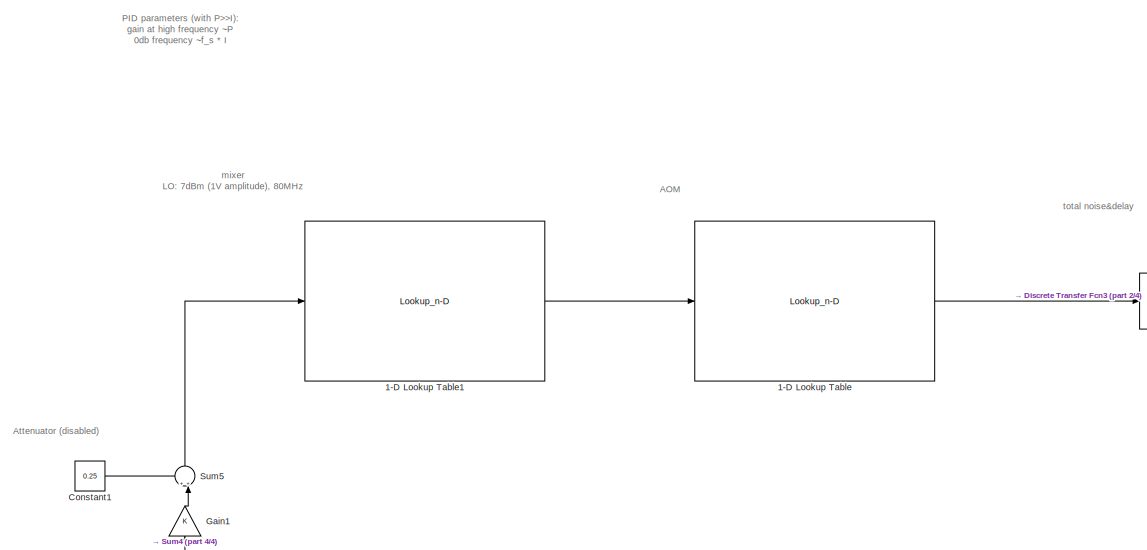
[diagram: root canvas - part 1/4, top left region]
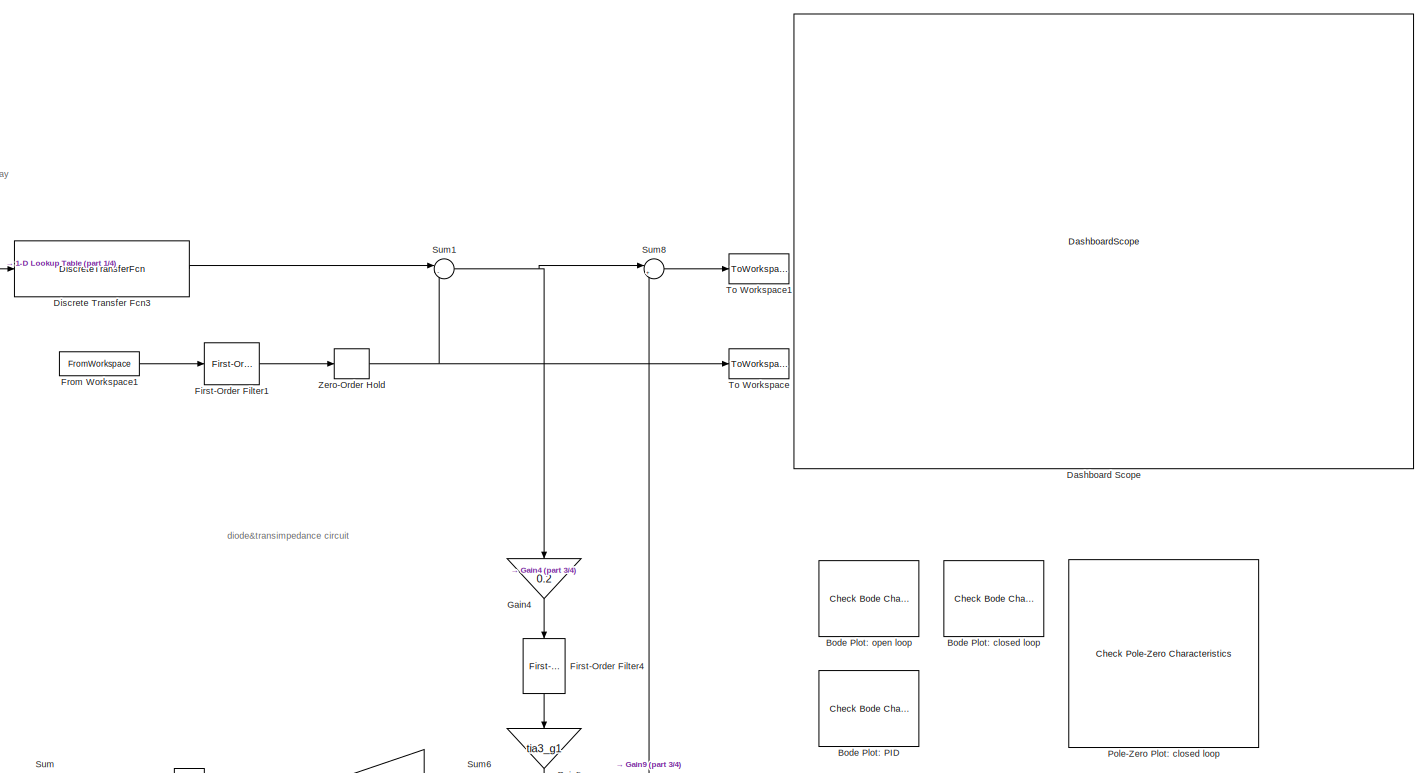
[diagram: root canvas - part 2/4, middle right region]
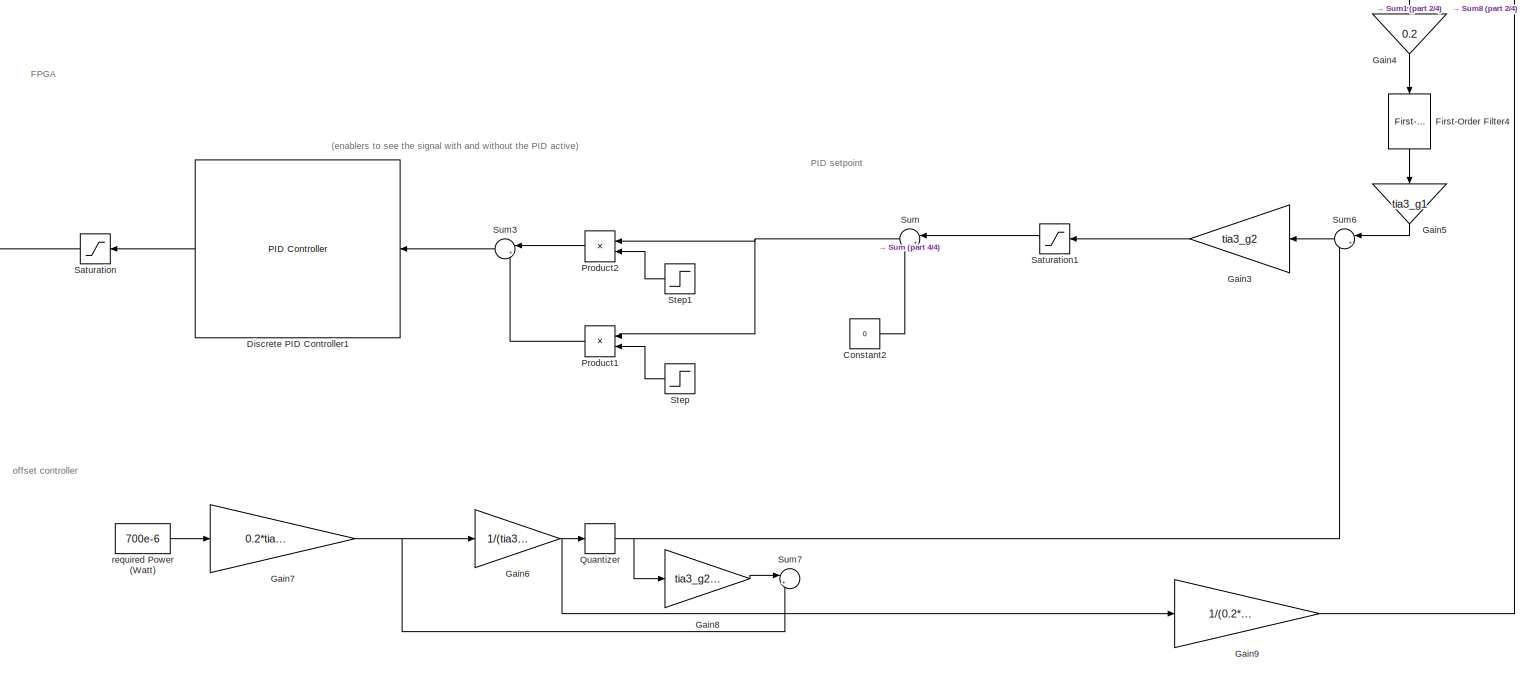
[diagram: root canvas - part 3/4, bottom center region]
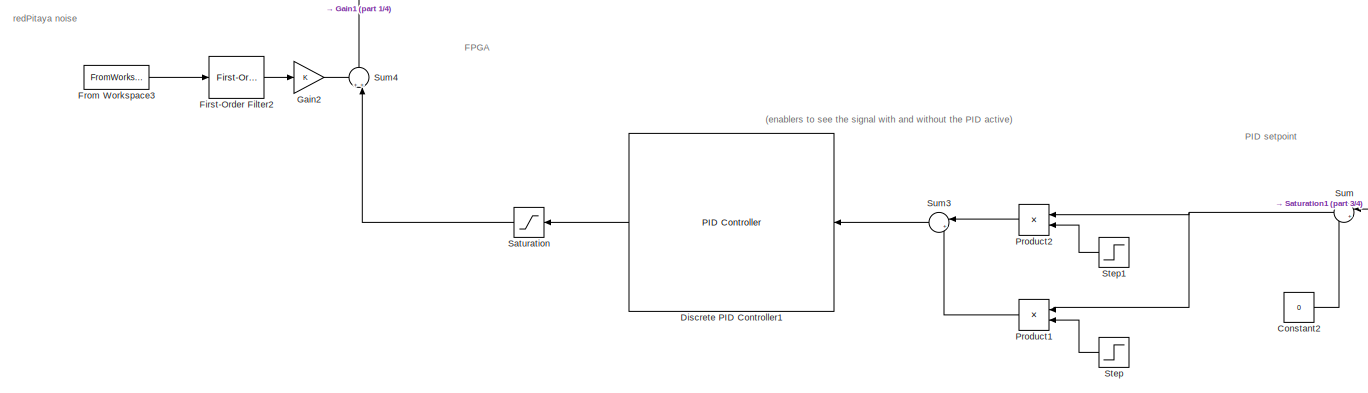
[diagram: root canvas - part 4/4, middle left region]
MODEL slx_bb8d70a57ca4
KIND model
CONFIG AbsTol = auto
CONFIG EnableMultiTasking = off
CONFIG FixedStep = auto
CONFIG MaxStep = auto
CONFIG MinStep = auto
CONFIG RelTol = 1e-3
CONFIG SampleTimeConstraint = Unconstrained
CONFIG SolverName = VariableStepAuto
CONFIG StartTime = 0
CONFIG StopTime = 20e-3
BLOCK [Lookup_n-D] 1-D Lookup Table
  BreakpointsForDimension1 = linspace(0, 1.58e-4, 250)
  InputPortMap = u0
  InternalRulePriority = Speed
  NumberOfTableDimensions = 1
  RndMeth = Simplest
  Table = 0.7/0.0165796/(5600*0.2)*[0.00094876, 0.00102912, 0.00104173, 0.00106448, 0.00103857, 0.00100141, 0.00101933, 0.00100616, 0.00097746, 0.00121732, 0.00134761, 0.00150802, 0.00188835, 0.0021115 , 0.00246877, 0.00279502, 0.00315454, 0.0035255 , 0.00394097, 0.00436382, 0.00480437, 0.00527323, 0.00575644, 0.00627402, 0.00681823, 0.00736118, 0.00793556, 0.00852683, 0.00913098, 0.00972158, 0.01035586, 0....<+2625ch>
BLOCK [Lookup_n-D] 1-D Lookup Table1
  BreakpointsForDimension1 = linspace(-.8,.8,21)
  InputPortMap = u0
  InternalRulePriority = Speed
  NumberOfTableDimensions = 1
  RndMeth = Simplest
  Table = 2.51e-5/.132*[0.15277694, 0.15133159, 0.14388574, 0.13145916, 0.11693308, 0.10007559, 0.08228435, 0.06224287, 0.04267323, 0.02078463, 0.00518469, 0.01619251, 0.03847123, 0.05810312, 0.07840341, 0.09661693, 0.1137483 , 0.12865011, 0.14147862, 0.15027863, 0.1525739]
BLOCK [Reference] Bode Plot: PID  REF=slctrl_linear/Check Bode 
Characteristics
  InstantiateOnLoad = on
  LibrarySourceBlock = slctrlblks/Linear Analysis Plots/Bode Plot
  SourceBlock = slctrl_linear/Check Bode \nCharacteristics
  SourceType = Checks_Bode
BLOCK [Reference] Bode Plot: closed loop  REF=slctrl_linear/Check Bode 
Characteristics
  InstantiateOnLoad = on
  LibrarySourceBlock = slctrlblks/Linear Analysis Plots/Bode Plot
  SourceBlock = slctrl_linear/Check Bode \nCharacteristics
  SourceType = Checks_Bode
BLOCK [Reference] Bode Plot: open loop  REF=slctrl_linear/Check Bode 
Characteristics
  InstantiateOnLoad = on
  LibrarySourceBlock = slctrlblks/Linear Analysis Plots/Bode Plot
  SourceBlock = slctrl_linear/Check Bode \nCharacteristics
  SourceType = Checks_Bode
BLOCK [Constant] Constant1
  Value = 0.25
BLOCK [Constant] Constant2
  Value = 0
BLOCK [DashboardScope] Dashboard Scope
BLOCK [Reference] Discrete PID Controller1  REF=slpidlib/PID Controller
  LibrarySourceBlock = simulink/Discrete/Discrete PID Controller
  SourceBlock = slpidlib/PID Controller
  SourceType = PID 1dof
BLOCK [DiscreteTransferFcn] Discrete Transfer Fcn3
  Denominator = [1, zeros(1,nDelay)]
  InputPortMap = u0
  a0EqualsOne = on
BLOCK [Reference] First-Order Filter1  REF=spsFirstOrderFilterLib/First-Order
Filter
  LibrarySourceBlock = sps_lib/Control/Filters/First-Order\nFilter
  SourceBlock = spsFirstOrderFilterLib/First-Order\nFilter
  SourceType = First-Order Filter
BLOCK [Reference] First-Order Filter2  REF=spsFirstOrderFilterLib/First-Order
Filter
  Commented = on
  LibrarySourceBlock = sps_lib/Control/Filters/First-Order\nFilter
  SourceBlock = spsFirstOrderFilterLib/First-Order\nFilter
  SourceType = First-Order Filter
BLOCK [Reference] First-Order Filter4  REF=spsFirstOrderFilterLib/First-Order
Filter
  LibrarySourceBlock = sps_lib/Control/Filters/First-Order\nFilter
  NameLocation = left
  SourceBlock = spsFirstOrderFilterLib/First-Order\nFilter
  SourceType = First-Order Filter
BLOCK [FromWorkspace] From Workspace1
  OutputAfterFinalValue = Setting to zero
  SampleTime = 1/fNoiseSampling
  VariableName = actualLaserNoise
BLOCK [FromWorkspace] From Workspace3
  Commented = on
  OutputAfterFinalValue = Setting to zero
  SampleTime = 1/fNoiseSampling
  VariableName = rpFloor
BLOCK [Gain] Gain1
  NameLocation = right
BLOCK [Gain] Gain2
  Commented = on
BLOCK [Gain] Gain3
  Gain = tia3_g2
  NameLocation = top
BLOCK [Gain] Gain4
  Gain = 0.2
  NameLocation = left
BLOCK [Gain] Gain5
  Gain = tia3_g1
  NameLocation = left
BLOCK [Gain] Gain6
  Gain = 1/(tia3_g2+1)
  NameLocation = top
BLOCK [Gain] Gain7
  Gain = 0.2*tia3_g1*tia3_g2
  NameLocation = top
BLOCK [Gain] Gain8
  Gain = tia3_g2+1
  NameLocation = top
BLOCK [Gain] Gain9
  Gain = 1/(0.2*tia3_g1)
  NameLocation = top
BLOCK [Reference] Pole-Zero Plot: closed loop  REF=slctrl_linear/Check Pole-Zero
Characteristics
  InstantiateOnLoad = on
  LibrarySourceBlock = slctrlblks/Linear Analysis Plots/Pole-Zero Plot
  SourceBlock = slctrl_linear/Check Pole-Zero\nCharacteristics
  SourceType = Checks_PZMap
BLOCK [Product] Product1
  NameLocation = top
BLOCK [Product] Product2
  NameLocation = top
BLOCK [Quantizer] Quantizer
  QuantizationInterval = .25
BLOCK [Saturate] Saturation
  LowerLimit = -1
  UpperLimit = 1
BLOCK [Saturate] Saturation1
  LowerLimit = -1
  UpperLimit = 1
BLOCK [Step] Step
  NameLocation = top
  SampleTime = 0
  Time = initialWaitTime
BLOCK [Step] Step1
  After = 0
  Before = 1
  NameLocation = top
  SampleTime = 0
  Time = 1/fsampling
BLOCK [Sum] Sum
  Inputs = |+-
  NameLocation = top
BLOCK [Sum] Sum1
  Inputs = |-+
BLOCK [Sum] Sum3
  Inputs = |++
BLOCK [Sum] Sum4
  Inputs = ++|
  NameLocation = left
BLOCK [Sum] Sum5
  Inputs = ++|
  NameLocation = left
BLOCK [Sum] Sum6
  Inputs = |++
  NameLocation = top
BLOCK [Sum] Sum7
  Inputs = |+-
BLOCK [Sum] Sum8
  Inputs = |++
BLOCK [ToWorkspace] To Workspace
  MaxDataPoints = inf
  SampleTime = -1
  SaveFormat = Structure With Time
  VariableName = inputNoise
BLOCK [ToWorkspace] To Workspace1
  MaxDataPoints = inf
  SampleTime = -1
  SaveFormat = Timeseries
  VariableName = laserNoise
BLOCK [ZeroOrderHold] Zero-Order Hold
  SampleTime = 1/fsampling
BLOCK [Constant] required Power (Watt)
  Value = 700e-6
ANNOTATION (root): (enablers to see the signal with and without the PID active)
ANNOTATION (root): AOM
ANNOTATION (root): Attenuator (disabled)
ANNOTATION (root): FPGA
ANNOTATION (root): PID parameters (with P>>I): gain at high frequency ~P 0db frequency ~f_s * I
ANNOTATION (root): PID setpoint
ANNOTATION (root): diode&transimpedance circuit
ANNOTATION (root): mixer LO: 7dBm (1V amplitude), 80MHz
ANNOTATION (root): offset controller
ANNOTATION (root): redPitaya noise
ANNOTATION (root): total noise&delay
LINE 1-D Lookup Table1:1 -> 1-D Lookup Table:1
LINE 1-D Lookup Table:1 -> Discrete Transfer Fcn3:1
LINE Constant1:1 -> Sum5:1
LINE Constant2:1 -> Sum:2
LINE Discrete PID Controller1:1 -> Saturation:1
LINE Discrete Transfer Fcn3:1 -> Sum1:1
LINE First-Order Filter1:1 -> Zero-Order Hold:1
LINE First-Order Filter2:1 -> Gain2:1
LINE First-Order Filter4:1 -> Gain5:1
LINE From Workspace1:1 -> First-Order Filter1:1
LINE From Workspace3:1 -> First-Order Filter2:1
LINE Gain1:1 -> Sum5:2
LINE Gain2:1 -> Sum4:1
LINE Gain3:1 -> Saturation1:1
LINE Gain4:1 -> First-Order Filter4:1
LINE Gain5:1 -> Sum6:1
NET Gain6:1 -> Gain9:1, Quantizer:1
NET Gain7:1 -> Gain6:1, Sum7:2
LINE Gain8:1 -> Sum7:1
LINE Gain9:1 -> Sum8:2
LINE Product1:1 -> Sum3:2
LINE Product2:1 -> Sum3:1
NET Quantizer:1 -> Gain8:1, Sum6:2
LINE Saturation1:1 -> Sum:1
LINE Saturation:1 -> Sum4:2
LINE Step1:1 -> Product2:2
LINE Step:1 -> Product1:2
NET Sum1:1 -> Gain4:1, Sum8:1
LINE Sum3:1 -> Discrete PID Controller1:1
LINE Sum4:1 -> Gain1:1
LINE Sum5:1 -> 1-D Lookup Table1:1
LINE Sum6:1 -> Gain3:1
LINE Sum8:1 -> To Workspace1:1
NET Sum:1 -> Product1:1, Product2:1
NET Zero-Order Hold:1 -> Sum1:2, To Workspace:1
LINE required Power (Watt):1 -> Gain7:1
note: NET lines group one-source signal fan-out (src -> all destinations, sorted); 1:1 wires keep LINE
